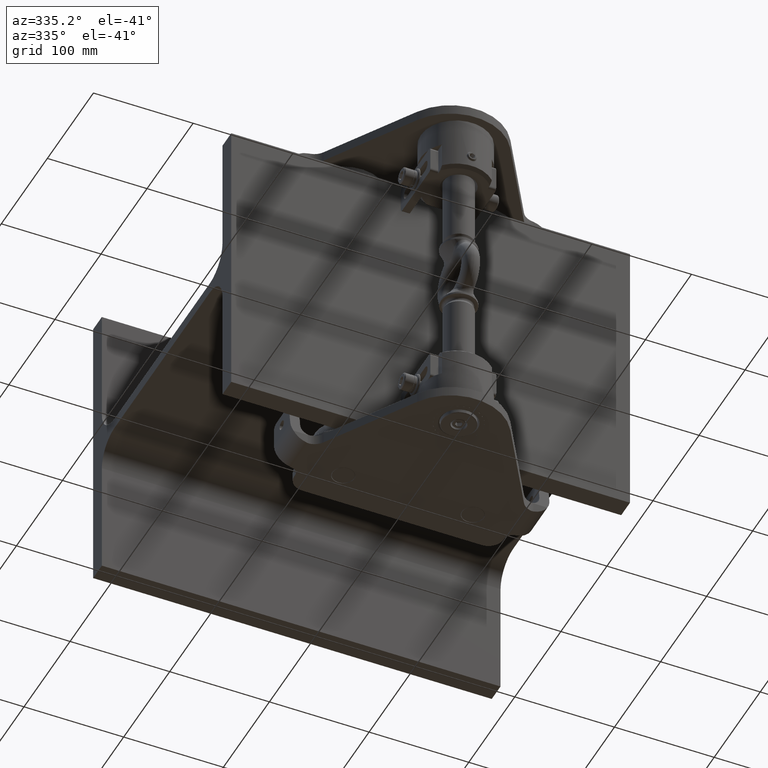
[diagram: clean part render]
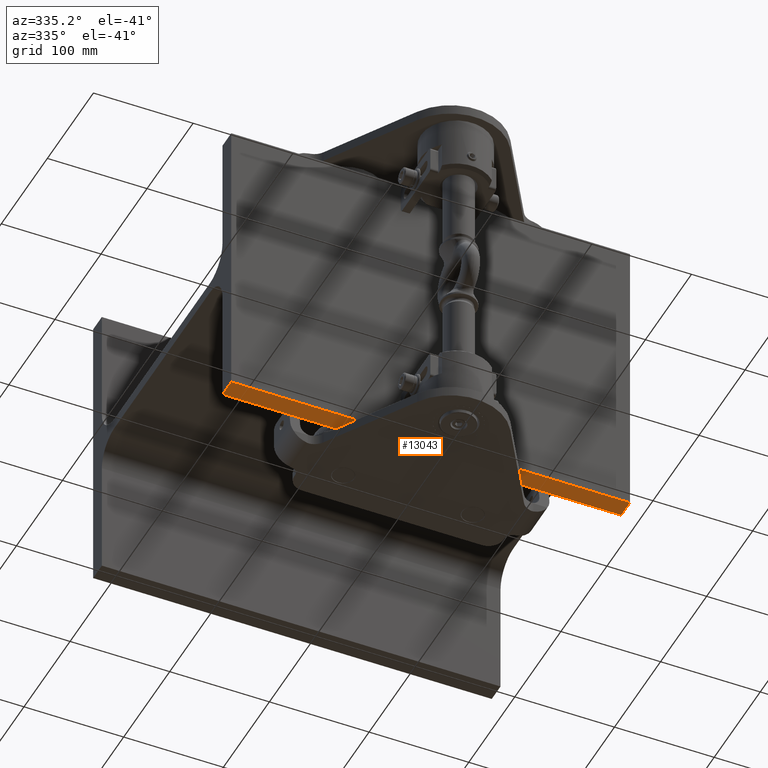
[diagram: same view with one face highlighted and labeled with its STEP entity id]
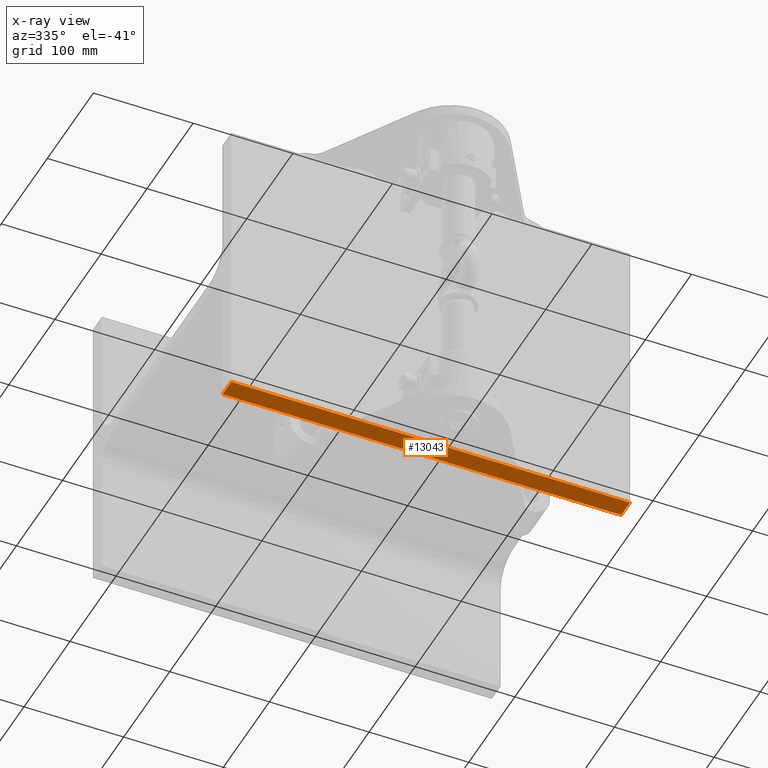
[diagram: x-ray of the same camera — body ghosted, the highlighted face saturated]
A machine part, auxiliary view. The second image highlights one B-rep face of the part: STEP entity #13043.
The next image is the same camera in x-ray: the body ghosted, the highlighted face saturated — about 0% of this face is hidden behind the body in this view.
In plain terms, the highlighted planar face has unit normal (0, 0, -1).
Its self-contained STEP definition (entity closure, byte-faithful):
#416 = CARTESIAN_POINT ( 'NONE',  ( -200.0000000000000000, -149.9999999999999100, -150.0000000000000300 ) ) ;
#2904 = VERTEX_POINT ( 'NONE', #43926 ) ;
#2988 = DIRECTION ( 'NONE',  ( 0.0000000000000000000, 1.000000000000000000, 0.0000000000000000000 ) ) ;
#5545 = DIRECTION ( 'NONE',  ( 1.000000000000000000, 0.0000000000000000000, 0.0000000000000000000 ) ) ;
#5717 = DIRECTION ( 'NONE',  ( 0.0000000000000000000, 1.000000000000000000, 0.0000000000000000000 ) ) ;
#5938 = EDGE_CURVE ( 'NONE', #34781, #25104, #46399, .T. ) ;
#6037 = EDGE_CURVE ( 'NONE', #38285, #34781, #23687, .T. ) ;
#7032 = FACE_OUTER_BOUND ( 'NONE', #27517, .T. ) ;
#7294 = AXIS2_PLACEMENT_3D ( 'NONE', #39243, #10609, #30941 ) ;
#10017 = VECTOR ( 'NONE', #5545, 1000.000000000000000 ) ;
#10609 = DIRECTION ( 'NONE',  ( 0.0000000000000000000, 0.0000000000000000000, -1.000000000000000000 ) ) ;
#10661 = CARTESIAN_POINT ( 'NONE',  ( -200.0000000000000000, -149.9999999999999100, -150.0000000000000300 ) ) ;
#11760 = CARTESIAN_POINT ( 'NONE',  ( 200.0000000000000000, -149.9999999999999100, -150.0000000000000300 ) ) ;
#13043 = ADVANCED_FACE ( 'NONE', ( #7032 ), #26955, .T. ) ;
#13708 = VECTOR ( 'NONE', #2988, 1000.000000000000000 ) ;
#14021 = ORIENTED_EDGE ( 'NONE', *, *, #34967, .F. ) ;
#14414 = ORIENTED_EDGE ( 'NONE', *, *, #6037, .T. ) ;
#15387 = VECTOR ( 'NONE', #35988, 1000.000000000000000 ) ;
#21490 = LINE ( 'NONE', #11760, #13708 ) ;
#23687 = LINE ( 'NONE', #10661, #39882 ) ;
#23938 = ORIENTED_EDGE ( 'NONE', *, *, #5938, .T. ) ;
#25104 = VERTEX_POINT ( 'NONE', #48712 ) ;
#26309 = CARTESIAN_POINT ( 'NONE',  ( -200.0000000000000000, -130.9999999999999100, -150.0000000000000300 ) ) ;
#26955 = PLANE ( 'NONE',  #7294 ) ;
#27517 = EDGE_LOOP ( 'NONE', ( #37209, #14021, #14414, #23938 ) ) ;
#30941 = DIRECTION ( 'NONE',  ( -1.000000000000000000, 0.0000000000000000000, 0.0000000000000000000 ) ) ;
#34781 = VERTEX_POINT ( 'NONE', #44081 ) ;
#34967 = EDGE_CURVE ( 'NONE', #38285, #2904, #48522, .T. ) ;
#35988 = DIRECTION ( 'NONE',  ( 1.000000000000000000, 0.0000000000000000000, 0.0000000000000000000 ) ) ;
#37209 = ORIENTED_EDGE ( 'NONE', *, *, #38120, .F. ) ;
#38120 = EDGE_CURVE ( 'NONE', #2904, #25104, #21490, .T. ) ;
#38285 = VERTEX_POINT ( 'NONE', #416 ) ;
#39243 = CARTESIAN_POINT ( 'NONE',  ( -200.0000000000000000, -149.9999999999999100, -150.0000000000000300 ) ) ;
#39882 = VECTOR ( 'NONE', #5717, 1000.000000000000000 ) ;
#43926 = CARTESIAN_POINT ( 'NONE',  ( 200.0000000000000000, -149.9999999999999100, -150.0000000000000300 ) ) ;
#44081 = CARTESIAN_POINT ( 'NONE',  ( -200.0000000000000000, -130.9999999999999100, -150.0000000000000300 ) ) ;
#46399 = LINE ( 'NONE', #26309, #10017 ) ;
#48522 = LINE ( 'NONE', #52213, #15387 ) ;
#48712 = CARTESIAN_POINT ( 'NONE',  ( 200.0000000000000000, -130.9999999999999100, -150.0000000000000300 ) ) ;
#52213 = CARTESIAN_POINT ( 'NONE',  ( -200.0000000000000000, -149.9999999999999100, -150.0000000000000300 ) ) ;